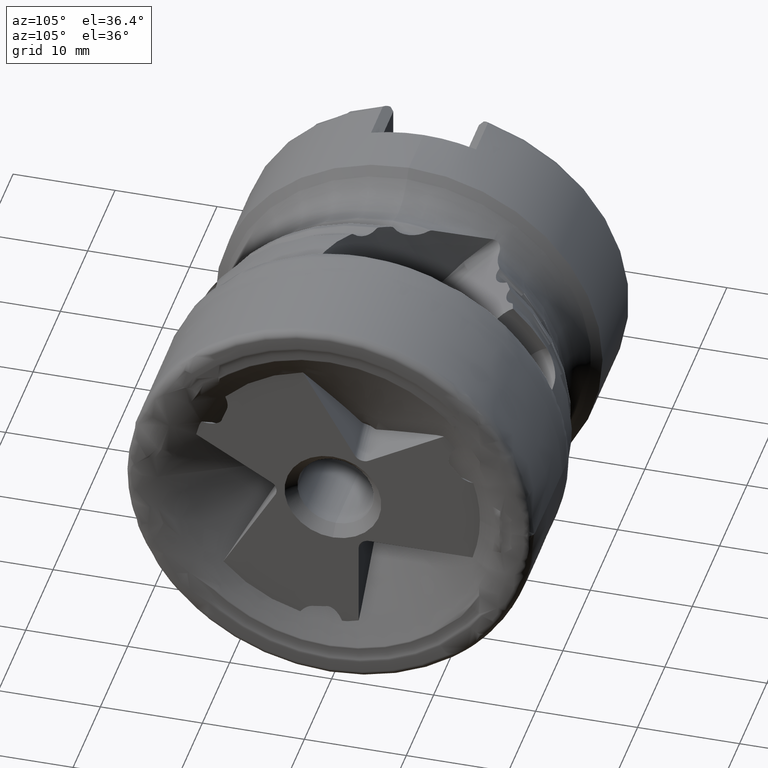
[diagram: clean part render]
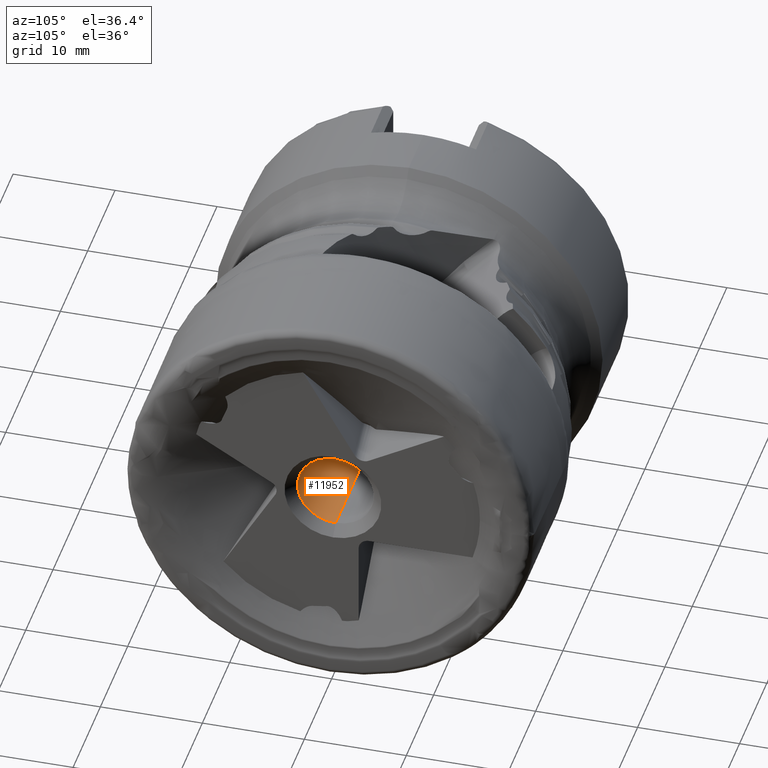
[diagram: same view with one face highlighted and labeled with its STEP entity id]
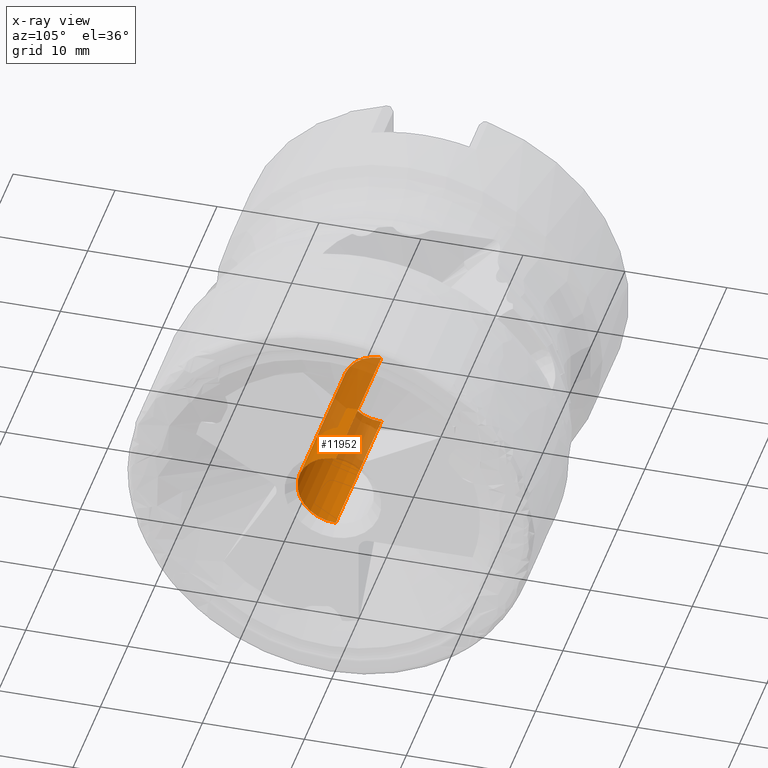
[diagram: x-ray of the same camera — body ghosted, the highlighted face saturated]
A machine part, auxiliary view. The second image highlights one B-rep face of the part: STEP entity #11952.
The next image is the same camera in x-ray: the body ghosted, the highlighted face saturated — about 45% of this face is hidden behind the body in this view.
In plain terms, the highlighted cylindrical surface (partial cylindrical patch) has radius 3.75 mm, axis along (1, -0, -0).
Its self-contained STEP definition (entity closure, byte-faithful):
#140 = LINE ( 'NONE', #6027, #7246 ) ;
#150 = DIRECTION ( 'NONE',  ( 1.000000000000000000, -0.0000000000000000000, -0.0000000000000000000 ) ) ;
#385 = ORIENTED_EDGE ( 'NONE', *, *, #7281, .T. ) ;
#870 = ORIENTED_EDGE ( 'NONE', *, *, #3492, .F. ) ;
#996 = CARTESIAN_POINT ( 'NONE',  ( -1.500000000000000000, 0.0000000000000000000, 0.0000000000000000000 ) ) ;
#1834 = DIRECTION ( 'NONE',  ( 1.000000000000000000, -0.0000000000000000000, -0.0000000000000000000 ) ) ;
#1996 = AXIS2_PLACEMENT_3D ( 'NONE', #996, #1834, #8586 ) ;
#2053 = CIRCLE ( 'NONE', #1996, 3.750000000000000000 ) ;
#2472 = CARTESIAN_POINT ( 'NONE',  ( 0.0000000000000000000, 0.0000000000000000000, 0.0000000000000000000 ) ) ;
#2924 = DIRECTION ( 'NONE',  ( 0.0000000000000000000, 0.0000000000000000000, -1.000000000000000000 ) ) ;
#3395 = CYLINDRICAL_SURFACE ( 'NONE', #9902, 3.749999999999998700 ) ;
#3492 = EDGE_CURVE ( 'NONE', #9172, #8841, #8499, .T. ) ;
#3876 = CARTESIAN_POINT ( 'NONE',  ( -1.500000000000000000, 0.0000000000000000000, -3.750000000000000000 ) ) ;
#4124 = CARTESIAN_POINT ( 'NONE',  ( -18.20000000000000300, 5.204748896376249700E-016, -3.749999999999997300 ) ) ;
#4335 = EDGE_CURVE ( 'NONE', #9172, #8541, #7911, .T. ) ;
#4829 = CARTESIAN_POINT ( 'NONE',  ( -1.500000000000000000, 4.592425496802575000E-016, 3.750000000000000400 ) ) ;
#4887 = CARTESIAN_POINT ( 'NONE',  ( -18.20000000000000300, 0.0000000000000000000, 3.749999999999997300 ) ) ;
#5066 = ORIENTED_EDGE ( 'NONE', *, *, #9666, .F. ) ;
#5163 = VERTEX_POINT ( 'NONE', #3876 ) ;
#5392 = DIRECTION ( 'NONE',  ( 0.0000000000000000000, 0.0000000000000000000, -1.000000000000000000 ) ) ;
#5459 = DIRECTION ( 'NONE',  ( 1.000000000000000000, -0.0000000000000000000, -0.0000000000000000000 ) ) ;
#5931 = DIRECTION ( 'NONE',  ( 1.000000000000000000, -0.0000000000000000000, -0.0000000000000000000 ) ) ;
#6027 = CARTESIAN_POINT ( 'NONE',  ( 0.0000000000000000000, 0.0000000000000000000, -3.749999999999998700 ) ) ;
#6098 = EDGE_LOOP ( 'NONE', ( #870, #9775, #385, #5066 ) ) ;
#6399 = VECTOR ( 'NONE', #5459, 1000.000000000000000 ) ;
#6872 = CARTESIAN_POINT ( 'NONE',  ( -18.20000000000000300, 0.0000000000000000000, 0.0000000000000000000 ) ) ;
#7246 = VECTOR ( 'NONE', #150, 1000.000000000000000 ) ;
#7256 = AXIS2_PLACEMENT_3D ( 'NONE', #6872, #5931, #2924 ) ;
#7281 = EDGE_CURVE ( 'NONE', #8541, #5163, #2053, .T. ) ;
#7911 = LINE ( 'NONE', #10267, #6399 ) ;
#8499 = CIRCLE ( 'NONE', #7256, 3.749999999999997300 ) ;
#8541 = VERTEX_POINT ( 'NONE', #4829 ) ;
#8586 = DIRECTION ( 'NONE',  ( 0.0000000000000000000, 0.0000000000000000000, -1.000000000000000000 ) ) ;
#8841 = VERTEX_POINT ( 'NONE', #4124 ) ;
#9172 = VERTEX_POINT ( 'NONE', #4887 ) ;
#9211 = DIRECTION ( 'NONE',  ( 1.000000000000000000, -0.0000000000000000000, -0.0000000000000000000 ) ) ;
#9457 = FACE_OUTER_BOUND ( 'NONE', #6098, .T. ) ;
#9666 = EDGE_CURVE ( 'NONE', #8841, #5163, #140, .T. ) ;
#9775 = ORIENTED_EDGE ( 'NONE', *, *, #4335, .T. ) ;
#9902 = AXIS2_PLACEMENT_3D ( 'NONE', #2472, #9211, #5392 ) ;
#10267 = CARTESIAN_POINT ( 'NONE',  ( 0.0000000000000000000, 4.592425496802573000E-016, 3.749999999999998700 ) ) ;
#11952 = ADVANCED_FACE ( 'NONE', ( #9457 ), #3395, .F. ) ;